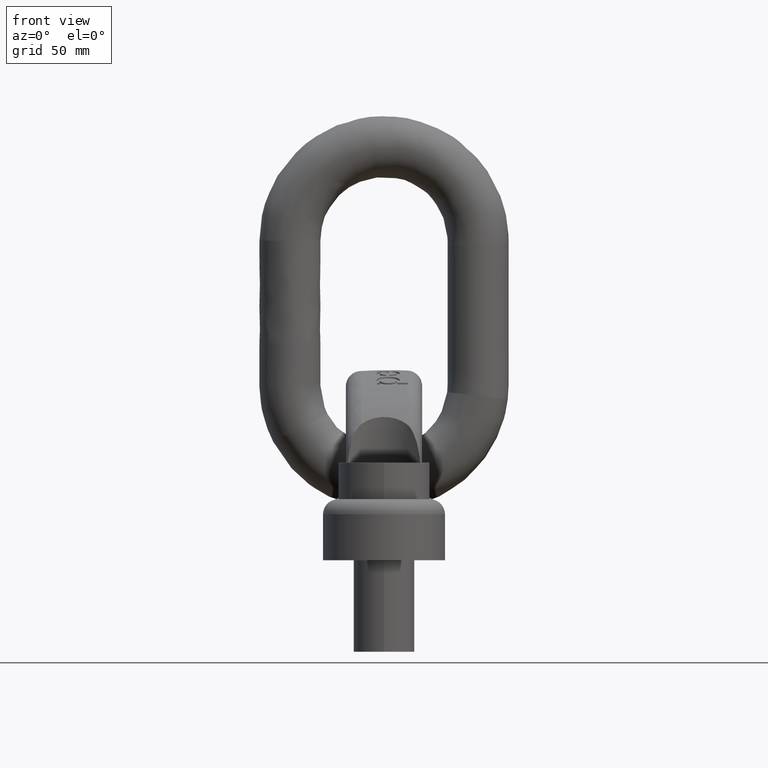
[diagram: clean part render]
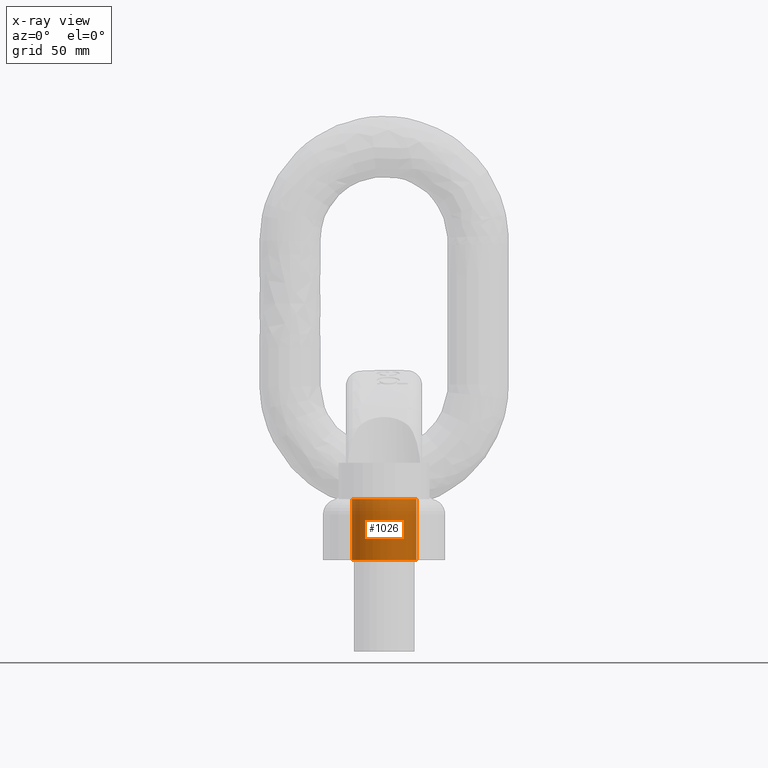
[diagram: x-ray — body ghosted, one internal face saturated and labeled with its STEP entity id]
A machine part, front view, then the same camera in x-ray: the body is ghosted and one INTERNAL B-rep face — a face not visible from any outside direction — is saturated and labeled: STEP entity #1026.
In plain terms, the highlighted cylindrical surface (bore or boss wall) has radius 19 mm, axis along (0, 0, 1).
Its self-contained STEP definition (entity closure, byte-faithful):
#1026=ADVANCED_FACE('',(#1484,#1485),#1157,.F.);
#1157=CYLINDRICAL_SURFACE('',#3643,19.);
#1484=FACE_BOUND('',#1585,.T.);
#1485=FACE_BOUND('',#1586,.T.);
#1585=EDGE_LOOP('',(#2363));
#1586=EDGE_LOOP('',(#2364));
#1973=CIRCLE('',#3587,19.);
#1979=CIRCLE('',#3596,19.);
#2363=ORIENTED_EDGE('',*,*,#3239,.T.);
#2364=ORIENTED_EDGE('',*,*,#3247,.F.);
#2955=VERTEX_POINT('',#5218);
#2958=VERTEX_POINT('',#5232);
#3239=EDGE_CURVE('',#2955,#2955,#1973,.T.);
#3247=EDGE_CURVE('',#2958,#2958,#1979,.T.);
#3587=AXIS2_PLACEMENT_3D('',#5217,#3897,#3898);
#3596=AXIS2_PLACEMENT_3D('',#5231,#3917,#3918);
#3643=AXIS2_PLACEMENT_3D('',#5840,#4026,#4027);
#3897=DIRECTION('',(0.,0.,1.));
#3898=DIRECTION('',(1.,0.,0.));
#3917=DIRECTION('',(0.,0.,1.));
#3918=DIRECTION('',(1.,0.,0.));
#4026=DIRECTION('',(0.,0.,1.));
#4027=DIRECTION('',(1.,0.,0.));
#5217=CARTESIAN_POINT('',(0.,87.5,36.));
#5218=CARTESIAN_POINT('',(19.,87.5,36.));
#5231=CARTESIAN_POINT('',(0.,87.5,0.));
#5232=CARTESIAN_POINT('',(19.,87.5,0.));
#5840=CARTESIAN_POINT('',(0.,87.5,-3.60000000000001));